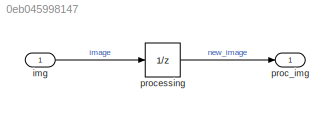
MODEL slx_0eb045998147
KIND model
CONFIG AbsTol = auto
CONFIG EnableMultiTasking = off
CONFIG FixedStep = auto
CONFIG MaxStep = auto
CONFIG MinStep = auto
CONFIG RelTol = 1e-3
CONFIG SampleTimeConstraint = Unconstrained
CONFIG Solver = VariableStepAuto
CONFIG SolverName = VariableStepAuto
CONFIG StartTime = 0.0
CONFIG StopTime = 10.0
BLOCK [Inport] img
  IconDisplay = Port number
BLOCK [Outport] proc_img
  IconDisplay = Port number
BLOCK [UnitDelay] processing
  InputProcessing = Elements as channels (sample based)
  SampleTime = 0.045
LINE img:1 -> processing:1
LINE processing:1 -> proc_img:1
